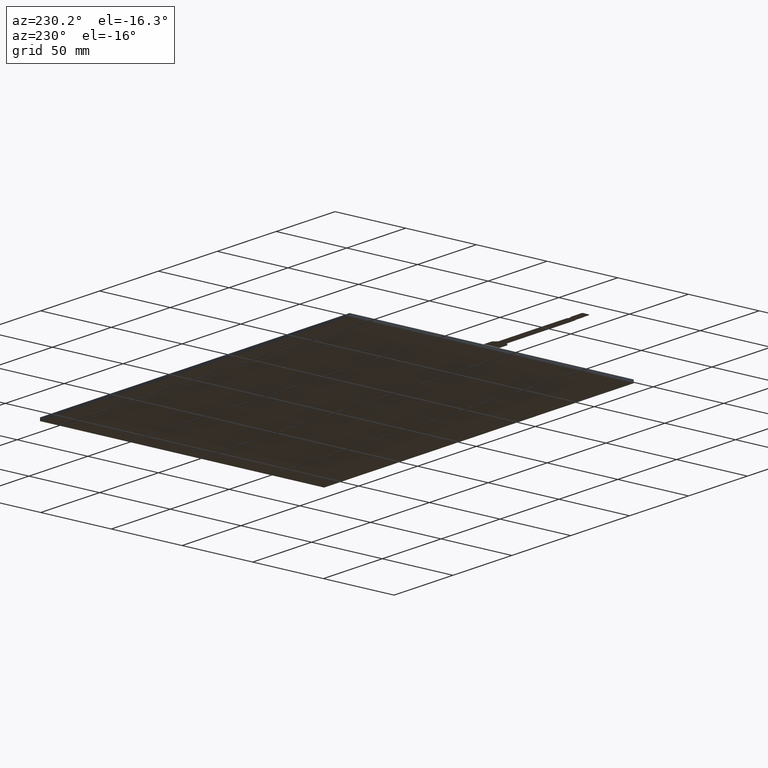
[diagram: clean part render]
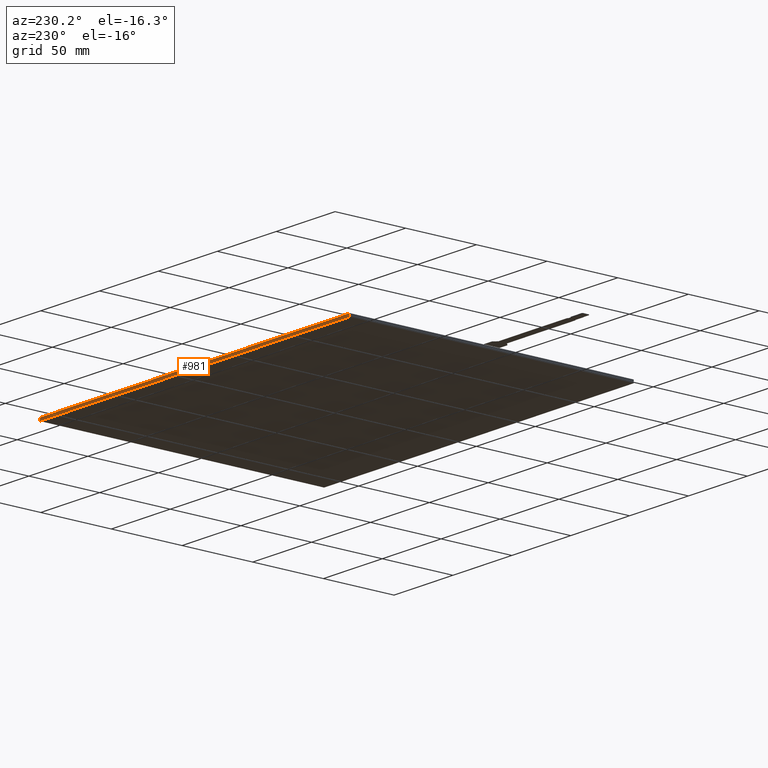
[diagram: same view with one face highlighted and labeled with its STEP entity id]
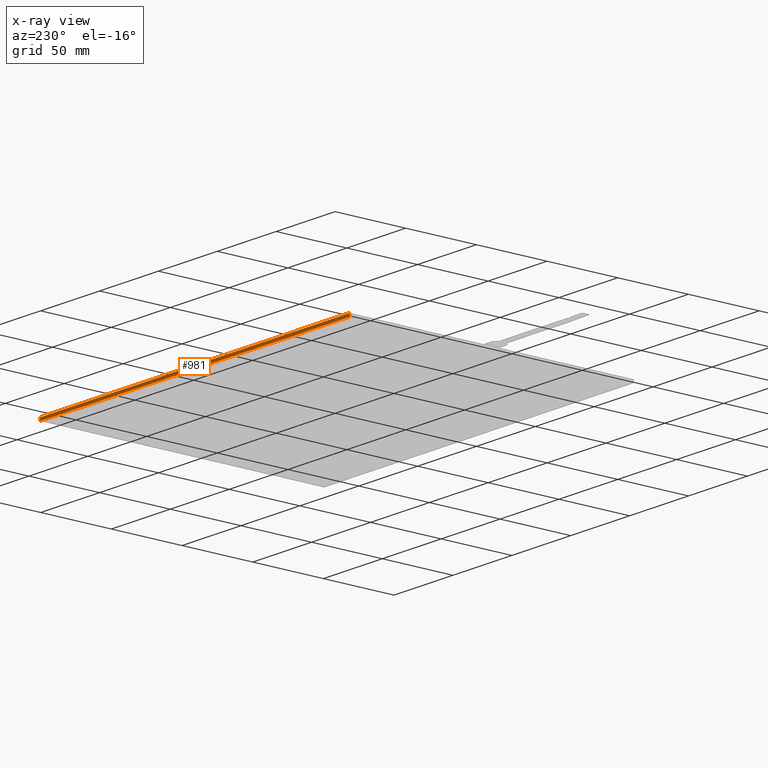
[diagram: x-ray of the same camera — body ghosted, the highlighted face saturated]
A machine part, auxiliary view. The second image highlights one B-rep face of the part: STEP entity #981.
The next image is the same camera in x-ray: the body ghosted, the highlighted face saturated — about 0% of this face is hidden behind the body in this view.
In plain terms, the highlighted planar face has unit normal (0, 1, 0).
Its self-contained STEP definition (entity closure, byte-faithful):
#71=FACE_OUTER_BOUND('',#125,.T.);
#125=EDGE_LOOP('',(#706,#707,#708,#709));
#188=LINE('',#1414,#314);
#192=LINE('',#1422,#318);
#198=LINE('',#1433,#324);
#199=LINE('',#1435,#325);
#314=VECTOR('',#1151,10.);
#318=VECTOR('',#1157,10.);
#324=VECTOR('',#1167,10.);
#325=VECTOR('',#1170,10.);
#432=VERTEX_POINT('',#1412);
#433=VERTEX_POINT('',#1413);
#436=VERTEX_POINT('',#1421);
#439=VERTEX_POINT('',#1431);
#532=EDGE_CURVE('',#432,#433,#188,.T.);
#536=EDGE_CURVE('',#433,#436,#192,.T.);
#542=EDGE_CURVE('',#432,#439,#198,.T.);
#543=EDGE_CURVE('',#436,#439,#199,.T.);
#706=ORIENTED_EDGE('',*,*,#532,.F.);
#707=ORIENTED_EDGE('',*,*,#542,.T.);
#708=ORIENTED_EDGE('',*,*,#543,.F.);
#709=ORIENTED_EDGE('',*,*,#536,.F.);
#935=PLANE('',#1054);
#981=ADVANCED_FACE('',(#71),#935,.T.);
#1054=AXIS2_PLACEMENT_3D('',#1434,#1168,#1169);
#1151=DIRECTION('',(-1.,0.,0.));
#1157=DIRECTION('',(0.,0.,-1.));
#1167=DIRECTION('',(0.,0.,-1.));
#1168=DIRECTION('center_axis',(0.,1.,0.));
#1169=DIRECTION('ref_axis',(1.,0.,0.));
#1170=DIRECTION('',(1.,0.,0.));
#1412=CARTESIAN_POINT('',(130.,100.5,0.));
#1413=CARTESIAN_POINT('',(-133.,100.5,0.));
#1414=CARTESIAN_POINT('',(130.,100.5,0.));
#1421=CARTESIAN_POINT('',(-133.,100.5,-2.1));
#1422=CARTESIAN_POINT('',(-133.,100.5,0.));
#1431=CARTESIAN_POINT('',(130.,100.5,-2.1));
#1433=CARTESIAN_POINT('',(130.,100.5,0.));
#1434=CARTESIAN_POINT('Origin',(-133.,100.5,0.));
#1435=CARTESIAN_POINT('',(130.,100.5,-2.1));